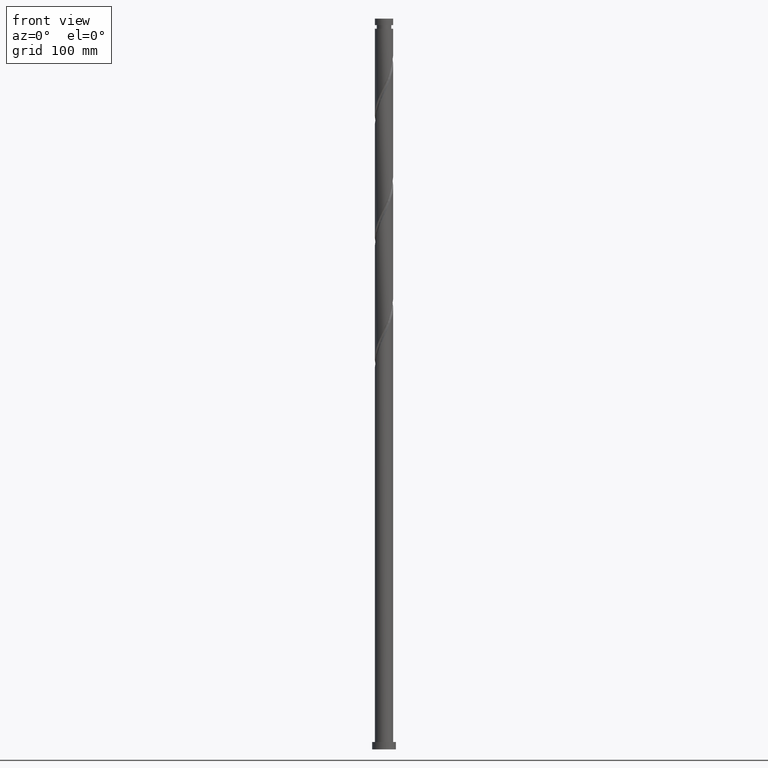
[diagram: clean part render]
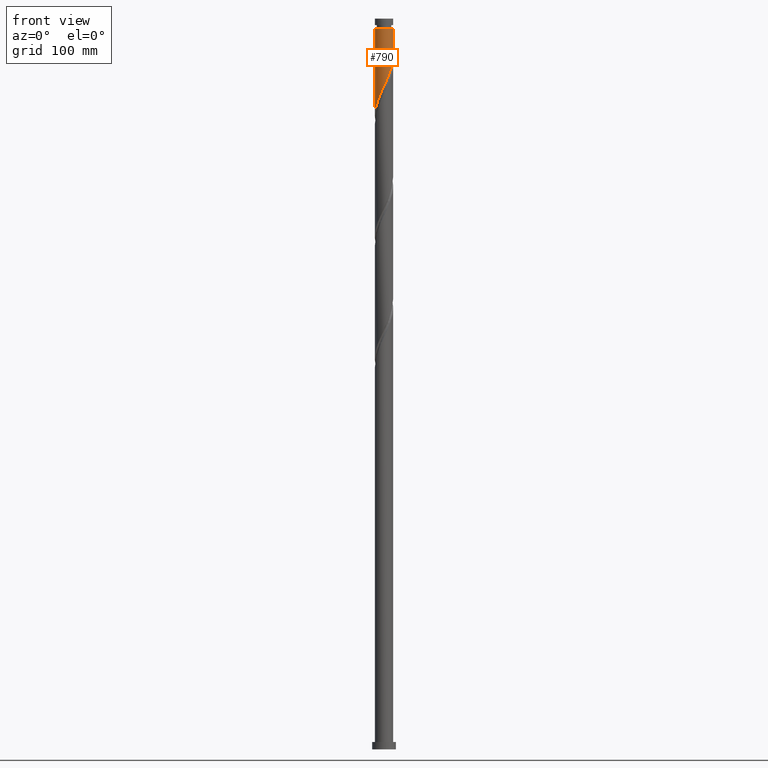
[diagram: same view with one face highlighted and labeled with its STEP entity id]
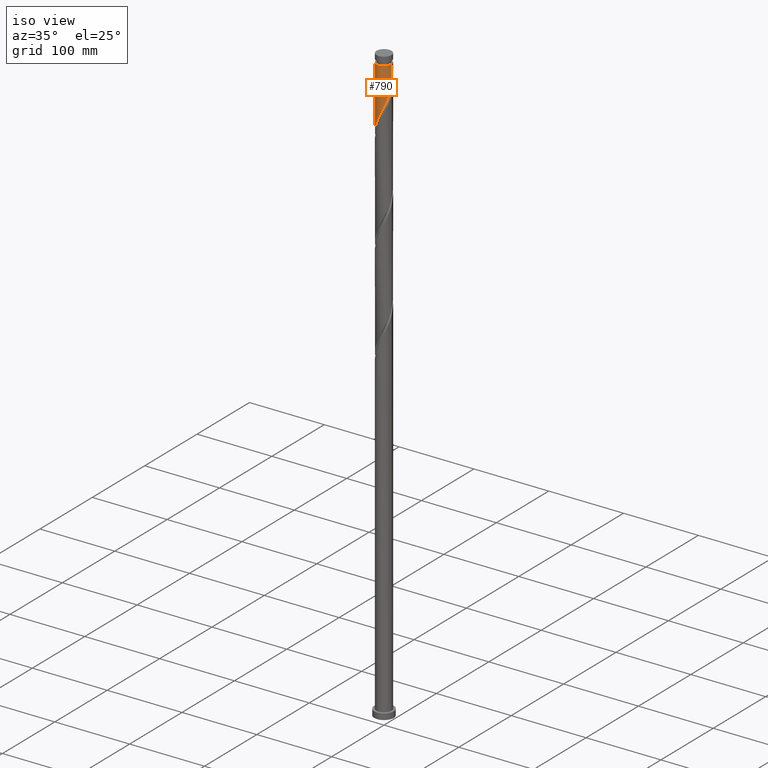
[diagram: same view with one face highlighted and labeled with its STEP entity id]
A machine part, front view. The second image highlights one B-rep face of the part: STEP entity #790.
A second angle (iso view) of the same face is appended — the face is thin or edge-on in the first view.
In plain terms, the highlighted cylindrical surface (edge-blend (fillet) strip) has radius 10 mm, axis along (-0, -0, -1).
Its self-contained STEP definition (entity closure, byte-faithful):
#49 = EDGE_CURVE ( 'NONE', #2122, #959, #879, .T. ) ;
#85 = EDGE_CURVE ( 'NONE', #315, #883, #2185, .T. ) ;
#133 = DIRECTION ( 'NONE',  ( -1.000000000000000000, 0.000000000000000000, 0.000000000000000000 ) ) ;
#134 = CARTESIAN_POINT ( 'NONE',  ( 2.121495232885086679, -9.807439782529289829, 731.0036921590634620 ) ) ;
#138 = CARTESIAN_POINT ( 'NONE',  ( -9.999999999999918288, 0.000000000000000000, 788.8984290011685516 ) ) ;
#149 = CARTESIAN_POINT ( 'NONE',  ( -7.050111913419854659, -7.140205817716160475, 709.9510605801159500 ) ) ;
#156 = DIRECTION ( 'NONE',  ( -0.000000000000000000, -0.000000000000000000, -1.000000000000000000 ) ) ;
#266 =( BOUNDED_CURVE ( )  B_SPLINE_CURVE ( 2, ( #848, #1224, #1210, #1571, #2107, #1949, #2311, #1802, #472, #665, #336, #305, #1422, #1030, #1980, #320, #861, #134, #2325, #1380, #1406, #2286, #2146, #515, #1964, #1046, #2118, #1784, #2297, #149, #1063, #1602, #697, #825, #1240, #1547, #655, #462, #2355, #1997, #351 ),
 .UNSPECIFIED., .F., .T. ) 
 B_SPLINE_CURVE_WITH_KNOTS ( ( 3, 2, 2, 2, 2, 2, 2, 2, 2, 2, 2, 2, 2, 2, 2, 2, 2, 2, 2, 2, 3 ),
 ( 0.3045295809515954355, 0.3092105263157894912, 0.3157894736842105088, 0.3223684210526315819, 0.3289473684210526550, 0.3355263157894736725, 0.3421052631578947456, 0.3486842105263157632, 0.3552631578947368363, 0.3618421052631579093, 0.3684210526315789269, 0.3750000000000000000, 0.3815789473684210731, 0.3881578947368420907, 0.3947368421052631637, 0.4013157894736842368, 0.4078947368421052544, 0.4144736842105263275, 0.4210526315789473450, 0.4276315789473684181, 0.4295295809515956575 ),
 .UNSPECIFIED. ) 
 CURVE ( )  GEOMETRIC_REPRESENTATION_ITEM ( )  RATIONAL_B_SPLINE_CURVE ( ( 0.9078162034606143127, 0.9068816855934214161, 0.9090909090909431445, 0.9059859027333700965, 0.9090909090909431445, 0.9059859027333700965, 0.9090909090909431445, 0.9059859027333700965, 0.9090909090909431445, 0.9059859027333700965, 0.9090909090909431445, 0.9059859027333700965, 0.9090909090909431445, 0.9059859027333700965, 0.9090909090909431445, 0.9059859027333700965, 0.9090909090909431445, 0.9059859027333700965, 0.9090909090909431445, 0.9059859027333700965, 0.9090909090909431445, 0.9059859027333700965, 0.9090909090909431445, 0.9059859027333700965, 0.9090909090909431445, 0.9059859027333700965, 0.9090909090909431445, 0.9059859027333700965, 0.9090909090909431445, 0.9059859027333700965, 0.9090909090909431445, 0.9059859027333700965, 0.9090909090909431445, 0.9059859027333700965, 0.9090909090909431445, 0.9059859027333700965, 0.9090909090909431445, 0.9059859027333700965, 0.9090909090909431445, 0.9081951262308917139, 0.9078162034606143127 ) ) 
 REPRESENTATION_ITEM ( '' )  );
#305 = CARTESIAN_POINT ( 'NONE',  ( 6.533624767495030738, -7.615665729840552345, 741.5300079485372180 ) ) ;
#315 = VERTEX_POINT ( 'NONE', #138 ) ;
#320 = CARTESIAN_POINT ( 'NONE',  ( 3.706812335779575029, -9.324492448300050640, 734.5124640888882368 ) ) ;
#336 = CARTESIAN_POINT ( 'NONE',  ( 7.115818394811933345, -7.026032206875808761, 743.2843939134493212 ) ) ;
#351 = CARTESIAN_POINT ( 'NONE',  ( -10.00000000000000178, -3.135029636974225439E-15, 693.1503612019574803 ) ) ;
#413 = ORIENTED_EDGE ( 'NONE', *, *, #49, .F. ) ;
#462 = CARTESIAN_POINT ( 'NONE',  ( -9.949134091119718803, -1.304357293080271818, 695.9159728608179876 ) ) ;
#472 = CARTESIAN_POINT ( 'NONE',  ( 8.175214799073730276, -5.758981072117353328, 746.7931658432739823 ) ) ;
#477 = DIRECTION ( 'NONE',  ( -0.000000000000000000, -0.000000000000000000, -1.000000000000000000 ) ) ;
#492 = DIRECTION ( 'NONE',  ( -1.000000000000000000, 0.000000000000000000, 0.000000000000000000 ) ) ;
#515 = CARTESIAN_POINT ( 'NONE',  ( -2.802026026230768352, -9.635105980705025885, 720.4773763695895923 ) ) ;
#655 = CARTESIAN_POINT ( 'NONE',  ( -9.773942403365396103, -2.114249251080851710, 697.6703588257300908 ) ) ;
#665 = CARTESIAN_POINT ( 'NONE',  ( 7.698012022128834175, -6.436398683911074947, 745.0387798783616518 ) ) ;
#697 = CARTESIAN_POINT ( 'NONE',  ( -8.557867634899579912, -5.173287305334816288, 704.6879026853791856 ) ) ;
#706 = ORIENTED_EDGE ( 'NONE', *, *, #85, .T. ) ;
#716 = CARTESIAN_POINT ( 'NONE',  ( 10.00000000000000178, 1.224646799147353454E-15, 800.0000000000000000 ) ) ;
#790 = ADVANCED_FACE ( 'NONE', ( #847 ), #1600, .T. ) ;
#825 = CARTESIAN_POINT ( 'NONE',  ( -8.986538442656179626, -4.464162175566084301, 702.9335167204668551 ) ) ;
#847 = FACE_OUTER_BOUND ( 'NONE', #1658, .T. ) ;
#848 = CARTESIAN_POINT ( 'NONE',  ( 10.00000000000000178, -5.374336520527243187E-16, 759.8170278686241090 ) ) ;
#861 = CARTESIAN_POINT ( 'NONE',  ( 2.914153784332332187, -9.565966115414667570, 732.7580781239755652 ) ) ;
#879 = LINE ( 'NONE', #716, #1172 ) ;
#883 = VERTEX_POINT ( 'NONE', #1123 ) ;
#959 = VERTEX_POINT ( 'NONE', #1173 ) ;
#1029 = CARTESIAN_POINT ( 'NONE',  ( 0.000000000000000000, 0.000000000000000000, 800.0000000000000000 ) ) ;
#1030 = CARTESIAN_POINT ( 'NONE',  ( 5.191017261092574664, -8.587197267218870778, 738.0212360187124432 ) ) ;
#1046 = CARTESIAN_POINT ( 'NONE',  ( -4.349696364606923105, -9.042497367808167041, 716.9686044397651585 ) ) ;
#1063 = CARTESIAN_POINT ( 'NONE',  ( -7.589654370281414764, -6.511309126409855708, 708.1966746152037331 ) ) ;
#1065 = CIRCLE ( 'NONE', #1907, 9.999999999999918288 ) ;
#1123 = CARTESIAN_POINT ( 'NONE',  ( -10.00000000000000178, -3.135029636974225439E-15, 693.1503612019574803 ) ) ;
#1172 = VECTOR ( 'NONE', #477, 1000.000000000000000 ) ;
#1173 = CARTESIAN_POINT ( 'NONE',  ( 10.00000000000000178, -5.374336520527243187E-16, 759.8170278686241090 ) ) ;
#1190 = CARTESIAN_POINT ( 'NONE',  ( 0.000000000000000000, 0.000000000000000000, 788.8984290011685516 ) ) ;
#1210 = CARTESIAN_POINT ( 'NONE',  ( 9.930858854084283038, -1.173900515484965767, 757.3194816327476246 ) ) ;
#1224 = CARTESIAN_POINT ( 'NONE',  ( 10.00000000000000178, -0.5889864175343345609, 758.5665007544388345 ) ) ;
#1240 = CARTESIAN_POINT ( 'NONE',  ( -9.292644579133625626, -3.694151692323757619, 701.1791307555547519 ) ) ;
#1380 = CARTESIAN_POINT ( 'NONE',  ( 0.4783092703628174513, -10.02286572557855493, 727.4949202292388009 ) ) ;
#1406 = CARTESIAN_POINT ( 'NONE',  ( -0.3498072259164587416, -9.993879872436766121, 725.7405342643265840 ) ) ;
#1422 = CARTESIAN_POINT ( 'NONE',  ( 5.862321014293801369, -8.101431498529711561, 739.7756219836246601 ) ) ;
#1440 = CARTESIAN_POINT ( 'NONE',  ( -10.00000000000000178, 0.000000000000000000, 800.0000000000000000 ) ) ;
#1508 = CARTESIAN_POINT ( 'NONE',  ( 9.999999999999918288, 1.224646799147348129E-15, 788.8984290011685516 ) ) ;
#1547 = CARTESIAN_POINT ( 'NONE',  ( -9.598750715611069850, -2.924141209081435822, 699.4247447906421939 ) ) ;
#1571 = CARTESIAN_POINT ( 'NONE',  ( 9.833586684089031138, -1.996794941299506743, 755.5650956678354078 ) ) ;
#1600 = CYLINDRICAL_SURFACE ( 'NONE', #1945, 10.00000000000000178 ) ;
#1602 = CARTESIAN_POINT ( 'NONE',  ( -8.129196827142973092, -5.882412435103552717, 706.4422886502914025 ) ) ;
#1604 = EDGE_CURVE ( 'NONE', #2122, #315, #1065, .T. ) ;
#1658 = EDGE_LOOP ( 'NONE', ( #413, #2310, #706, #1683 ) ) ;
#1683 = ORIENTED_EDGE ( 'NONE', *, *, #2308, .F. ) ;
#1766 = DIRECTION ( 'NONE',  ( -0.000000000000000000, -0.000000000000000000, -1.000000000000000000 ) ) ;
#1784 = CARTESIAN_POINT ( 'NONE',  ( -5.778718324968770581, -8.203232998748877236, 713.4598325099408385 ) ) ;
#1802 = CARTESIAN_POINT ( 'NONE',  ( 8.652417576018629930, -5.081563460323630821, 748.5475518081863129 ) ) ;
#1907 = AXIS2_PLACEMENT_3D ( 'NONE', #1190, #156, #492 ) ;
#1945 = AXIS2_PLACEMENT_3D ( 'NONE', #1029, #1766, #133 ) ;
#1949 = CARTESIAN_POINT ( 'NONE',  ( 9.370807733603871981, -3.588116432185861626, 752.0563237380107466 ) ) ;
#1954 = DIRECTION ( 'NONE',  ( -0.000000000000000000, -0.000000000000000000, -1.000000000000000000 ) ) ;
#1964 = CARTESIAN_POINT ( 'NONE',  ( -3.575861195418843064, -9.338801674256592023, 718.7229904046776028 ) ) ;
#1980 = CARTESIAN_POINT ( 'NONE',  ( 4.448914798436076623, -8.955844857759458932, 736.2668500538002263 ) ) ;
#1997 = CARTESIAN_POINT ( 'NONE',  ( -10.00000000000000355, -0.2384733424516585487, 693.6566842203977785 ) ) ;
#2107 = CARTESIAN_POINT ( 'NONE',  ( 9.602197208846446230, -2.792455686742683518, 753.8107097029230772 ) ) ;
#2118 = CARTESIAN_POINT ( 'NONE',  ( -5.064207344787842402, -8.622865183278520362, 715.2142184748529417 ) ) ;
#2122 = VERTEX_POINT ( 'NONE', #1508 ) ;
#2146 = CARTESIAN_POINT ( 'NONE',  ( -1.989974874213251477, -9.800000000000000711, 722.2317623345020365 ) ) ;
#2185 = LINE ( 'NONE', #1440, #2260 ) ;
#2260 = VECTOR ( 'NONE', #1954, 1000.000000000000000 ) ;
#2286 = CARTESIAN_POINT ( 'NONE',  ( -1.177923722195739042, -9.964894019294979088, 723.9861482994142534 ) ) ;
#2297 = CARTESIAN_POINT ( 'NONE',  ( -6.414415119194310400, -7.671719408232515747, 711.7054465450281668 ) ) ;
#2308 = EDGE_CURVE ( 'NONE', #959, #883, #266, .T. ) ;
#2310 = ORIENTED_EDGE ( 'NONE', *, *, #1604, .T. ) ;
#2311 = CARTESIAN_POINT ( 'NONE',  ( 9.011612654811246514, -4.334839946254740006, 750.3019377730985298 ) ) ;
#2325 = CARTESIAN_POINT ( 'NONE',  ( 1.299902251623954008, -9.915152754053920603, 729.2493061941510177 ) ) ;
#2355 = CARTESIAN_POINT ( 'NONE',  ( -9.988632557599629536, -0.4766756017049214589, 694.1615868959055433 ) ) ;